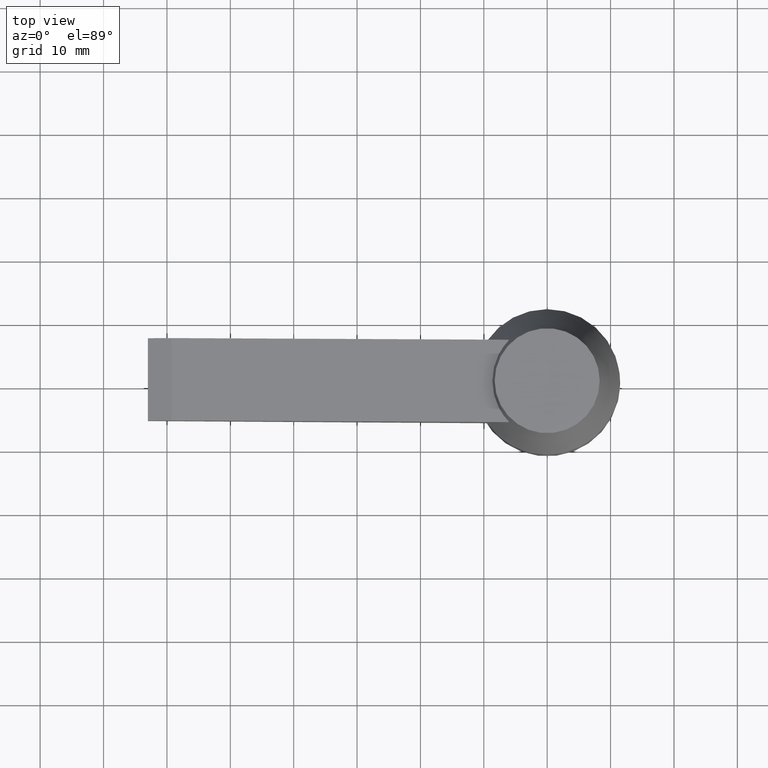
[diagram: clean part render]
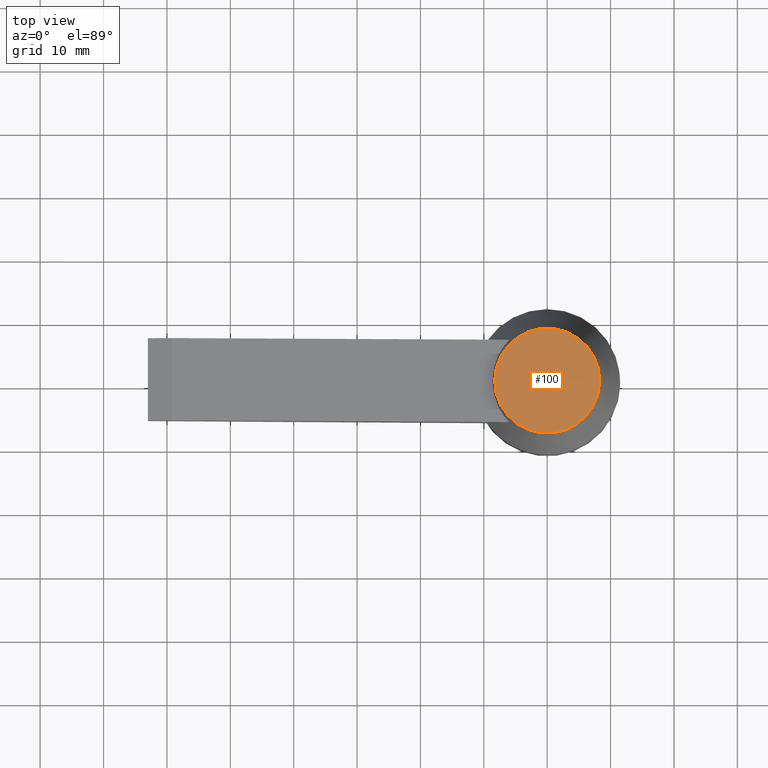
[diagram: same view with one face highlighted and labeled with its STEP entity id]
A machine part, top view. The second image highlights one B-rep face of the part: STEP entity #100.
In plain terms, the highlighted planar face has unit normal (0, 0, -1).
Its self-contained STEP definition (entity closure, byte-faithful):
#75=CARTESIAN_POINT('',(-16.569219381653024,-16.569219381653102,32.500000000000043));
#76=DIRECTION('',(0.0,0.0,-1.0));
#77=DIRECTION('',(0.0,1.0,0.0));
#78=AXIS2_PLACEMENT_3D('',#75,#76,#77);
#79=PLANE('',#78);
#80=CARTESIAN_POINT('',(8.284609690826677,4.310419E-014,32.500000000000007));
#81=VERTEX_POINT('',#80);
#82=CARTESIAN_POINT('',(-8.284609690826493,1.990051E-015,32.500000000000028));
#83=VERTEX_POINT('',#82);
#84=CARTESIAN_POINT('',(1.205831E-013,4.218442E-014,32.500000000000014));
#85=DIRECTION('',(-8.327157E-016,-1.072679E-015,-1.0));
#86=DIRECTION('',(-1.0,-1.110223E-016,8.327157E-016));
#87=AXIS2_PLACEMENT_3D('',#84,#85,#86);
#88=CIRCLE('',#87,8.284609690826557);
#89=EDGE_CURVE('',#81,#83,#88,.T.);
#90=ORIENTED_EDGE('',*,*,#89,.F.);
#91=CARTESIAN_POINT('',(1.205831E-013,4.218442E-014,32.500000000000014));
#92=DIRECTION('',(-8.327157E-016,-1.072679E-015,-1.0));
#93=DIRECTION('',(-1.0,-1.110223E-016,8.327157E-016));
#94=AXIS2_PLACEMENT_3D('',#91,#92,#93);
#95=CIRCLE('',#94,8.284609690826557);
#96=EDGE_CURVE('',#83,#81,#95,.T.);
#97=ORIENTED_EDGE('',*,*,#96,.F.);
#98=EDGE_LOOP('',(#90,#97));
#99=FACE_OUTER_BOUND('',#98,.T.);
#100=ADVANCED_FACE('',(#99),#79,.F.);